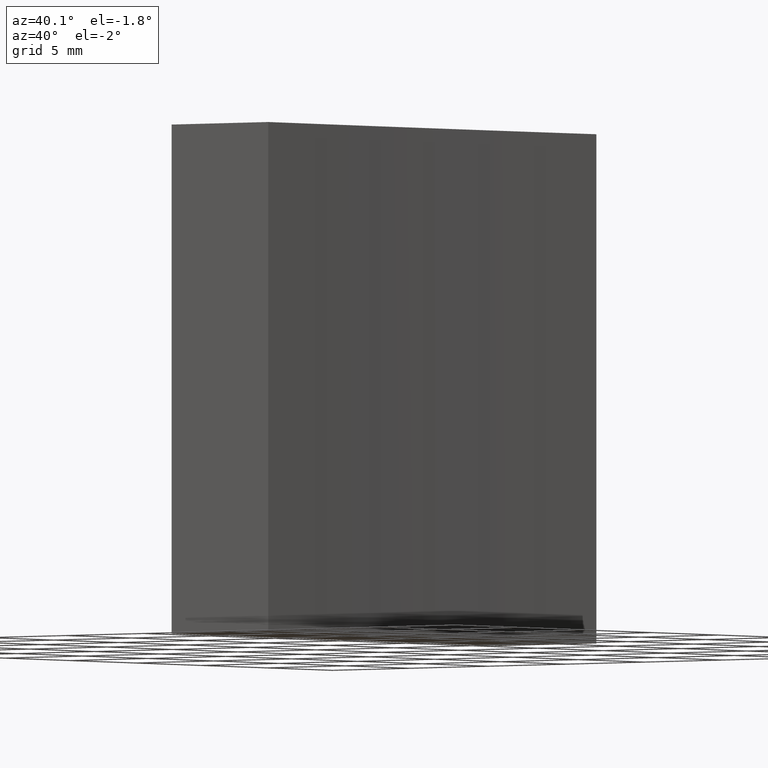
[diagram: clean part render]
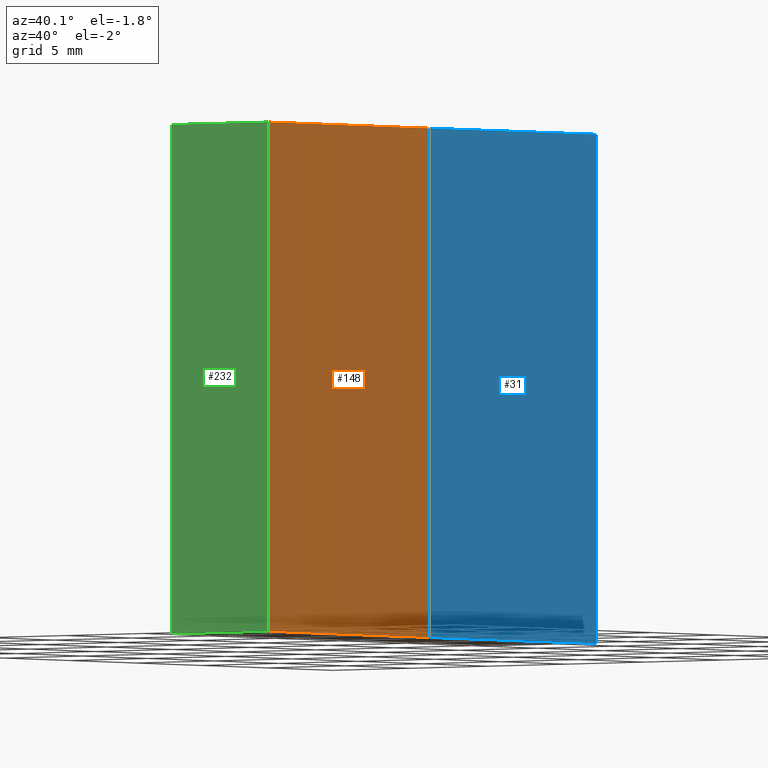
[diagram: same view with three faces highlighted in distinct colors, each labeled with its STEP entity id]
A machine part, auxiliary view with three faces highlighted in distinct colors.
Their STEP definitions:

[orange] entity #148 — the highlighted cylindrical surface (partial cylindrical patch) has radius 400 mm, axis along (-0, -0, -1).
#1 = LINE ( 'NONE', #146, #108 ) ;
#5 = DIRECTION ( 'NONE',  ( -0.0000000000000000000, -0.0000000000000000000, -1.000000000000000000 ) ) ;
#6 = EDGE_CURVE ( 'NONE', #134, #78, #185, .T. ) ;
#13 = CARTESIAN_POINT ( 'NONE',  ( 690.7071356183511200, 66.85792926776717600, 25.00000000000000000 ) ) ;
#16 = DIRECTION ( 'NONE',  ( -1.000000000000000000, 0.0000000000000000000, 0.0000000000000000000 ) ) ;
#18 = CYLINDRICAL_SURFACE ( 'NONE', #95, 400.0000000000000600 ) ;
#23 = CARTESIAN_POINT ( 'NONE',  ( 290.7071356183510000, 66.85792926776717600, 25.00000000000000000 ) ) ;
#25 = ORIENTED_EDGE ( 'NONE', *, *, #83, .T. ) ;
#35 = AXIS2_PLACEMENT_3D ( 'NONE', #102, #212, #159 ) ;
#43 = EDGE_CURVE ( 'NONE', #93, #134, #132, .T. ) ;
#46 = CARTESIAN_POINT ( 'NONE',  ( 290.9024958253641000, 54.35792926776742500, 25.00000000000000000 ) ) ;
#58 = EDGE_CURVE ( 'NONE', #93, #184, #1, .T. ) ;
#78 = VERTEX_POINT ( 'NONE', #161 ) ;
#82 = DIRECTION ( 'NONE',  ( 1.000000000000000000, 0.0000000000000000000, 0.0000000000000000000 ) ) ;
#83 = EDGE_CURVE ( 'NONE', #184, #78, #156, .T. ) ;
#84 = CARTESIAN_POINT ( 'NONE',  ( 290.7071356183510000, 66.85792926776717600, 25.00000000000000000 ) ) ;
#92 = DIRECTION ( 'NONE',  ( -0.0000000000000000000, -0.0000000000000000000, -1.000000000000000000 ) ) ;
#93 = VERTEX_POINT ( 'NONE', #46 ) ;
#95 = AXIS2_PLACEMENT_3D ( 'NONE', #13, #92, #16 ) ;
#102 = CARTESIAN_POINT ( 'NONE',  ( 690.7071356183511200, 66.85792926776717600, 0.0000000000000000000 ) ) ;
#108 = VECTOR ( 'NONE', #195, 1000.000000000000000 ) ;
#113 = ORIENTED_EDGE ( 'NONE', *, *, #43, .F. ) ;
#118 = DIRECTION ( 'NONE',  ( -0.0000000000000000000, -0.0000000000000000000, -1.000000000000000000 ) ) ;
#132 = CIRCLE ( 'NONE', #164, 400.0000000000000000 ) ;
#134 = VERTEX_POINT ( 'NONE', #84 ) ;
#135 = VECTOR ( 'NONE', #5, 1000.000000000000000 ) ;
#146 = CARTESIAN_POINT ( 'NONE',  ( 290.9024958253641000, 54.35792926776742500, 25.00000000000000000 ) ) ;
#148 = ADVANCED_FACE ( 'NONE', ( #166 ), #18, .F. ) ;
#156 = CIRCLE ( 'NONE', #35, 400.0000000000000000 ) ;
#159 = DIRECTION ( 'NONE',  ( 1.000000000000000000, 0.0000000000000000000, 0.0000000000000000000 ) ) ;
#161 = CARTESIAN_POINT ( 'NONE',  ( 290.7071356183510000, 66.85792926776717600, 0.0000000000000000000 ) ) ;
#164 = AXIS2_PLACEMENT_3D ( 'NONE', #191, #118, #82 ) ;
#166 = FACE_OUTER_BOUND ( 'NONE', #201, .T. ) ;
#177 = CARTESIAN_POINT ( 'NONE',  ( 290.9024958253641000, 54.35792926776742500, 0.0000000000000000000 ) ) ;
#184 = VERTEX_POINT ( 'NONE', #177 ) ;
#185 = LINE ( 'NONE', #23, #135 ) ;
#191 = CARTESIAN_POINT ( 'NONE',  ( 690.7071356183511200, 66.85792926776717600, 25.00000000000000000 ) ) ;
#195 = DIRECTION ( 'NONE',  ( -0.0000000000000000000, -0.0000000000000000000, -1.000000000000000000 ) ) ;
#201 = EDGE_LOOP ( 'NONE', ( #217, #113, #219, #25 ) ) ;
#212 = DIRECTION ( 'NONE',  ( -0.0000000000000000000, -0.0000000000000000000, -1.000000000000000000 ) ) ;
#217 = ORIENTED_EDGE ( 'NONE', *, *, #6, .F. ) ;
#219 = ORIENTED_EDGE ( 'NONE', *, *, #58, .T. ) ;

[blue] entity #31 — the highlighted cylindrical surface (partial cylindrical patch) has radius 400 mm, axis along (-0, -0, -1).
#3 = ORIENTED_EDGE ( 'NONE', *, *, #42, .T. ) ;
#5 = DIRECTION ( 'NONE',  ( -0.0000000000000000000, -0.0000000000000000000, -1.000000000000000000 ) ) ;
#6 = EDGE_CURVE ( 'NONE', #134, #78, #185, .T. ) ;
#8 = DIRECTION ( 'NONE',  ( -0.0000000000000000000, -0.0000000000000000000, -1.000000000000000000 ) ) ;
#9 = CARTESIAN_POINT ( 'NONE',  ( 690.7071356183511200, 66.85792926776717600, 25.00000000000000000 ) ) ;
#21 = DIRECTION ( 'NONE',  ( -0.0000000000000000000, -0.0000000000000000000, -1.000000000000000000 ) ) ;
#23 = CARTESIAN_POINT ( 'NONE',  ( 290.7071356183510000, 66.85792926776717600, 25.00000000000000000 ) ) ;
#29 = DIRECTION ( 'NONE',  ( -0.0000000000000000000, -0.0000000000000000000, -1.000000000000000000 ) ) ;
#31 = ADVANCED_FACE ( 'NONE', ( #73 ), #80, .F. ) ;
#42 = EDGE_CURVE ( 'NONE', #78, #209, #90, .T. ) ;
#55 = VECTOR ( 'NONE', #8, 1000.000000000000000 ) ;
#60 = EDGE_CURVE ( 'NONE', #134, #130, #131, .T. ) ;
#66 = CARTESIAN_POINT ( 'NONE',  ( 690.7071356183511200, 66.85792926776717600, 0.0000000000000000000 ) ) ;
#68 = CARTESIAN_POINT ( 'NONE',  ( 290.9024958253641000, 79.35792926776707600, 25.00000000000000000 ) ) ;
#72 = EDGE_LOOP ( 'NONE', ( #174, #103, #3, #239 ) ) ;
#73 = FACE_OUTER_BOUND ( 'NONE', #72, .T. ) ;
#78 = VERTEX_POINT ( 'NONE', #161 ) ;
#80 = CYLINDRICAL_SURFACE ( 'NONE', #190, 400.0000000000000600 ) ;
#84 = CARTESIAN_POINT ( 'NONE',  ( 290.7071356183510000, 66.85792926776717600, 25.00000000000000000 ) ) ;
#90 = CIRCLE ( 'NONE', #226, 400.0000000000000000 ) ;
#103 = ORIENTED_EDGE ( 'NONE', *, *, #6, .T. ) ;
#110 = CARTESIAN_POINT ( 'NONE',  ( 290.9024958253641000, 79.35792926776707600, 0.0000000000000000000 ) ) ;
#115 = CARTESIAN_POINT ( 'NONE',  ( 290.9024958253641000, 79.35792926776707600, 25.00000000000000000 ) ) ;
#117 = AXIS2_PLACEMENT_3D ( 'NONE', #9, #196, #141 ) ;
#128 = EDGE_CURVE ( 'NONE', #130, #209, #235, .T. ) ;
#130 = VERTEX_POINT ( 'NONE', #115 ) ;
#131 = CIRCLE ( 'NONE', #117, 400.0000000000000000 ) ;
#134 = VERTEX_POINT ( 'NONE', #84 ) ;
#135 = VECTOR ( 'NONE', #5, 1000.000000000000000 ) ;
#137 = CARTESIAN_POINT ( 'NONE',  ( 690.7071356183511200, 66.85792926776717600, 25.00000000000000000 ) ) ;
#141 = DIRECTION ( 'NONE',  ( 1.000000000000000000, 0.0000000000000000000, 0.0000000000000000000 ) ) ;
#142 = DIRECTION ( 'NONE',  ( 1.000000000000000000, 0.0000000000000000000, 0.0000000000000000000 ) ) ;
#154 = DIRECTION ( 'NONE',  ( -1.000000000000000000, 0.0000000000000000000, 0.0000000000000000000 ) ) ;
#161 = CARTESIAN_POINT ( 'NONE',  ( 290.7071356183510000, 66.85792926776717600, 0.0000000000000000000 ) ) ;
#174 = ORIENTED_EDGE ( 'NONE', *, *, #60, .F. ) ;
#185 = LINE ( 'NONE', #23, #135 ) ;
#190 = AXIS2_PLACEMENT_3D ( 'NONE', #137, #21, #154 ) ;
#196 = DIRECTION ( 'NONE',  ( -0.0000000000000000000, -0.0000000000000000000, -1.000000000000000000 ) ) ;
#209 = VERTEX_POINT ( 'NONE', #110 ) ;
#226 = AXIS2_PLACEMENT_3D ( 'NONE', #66, #29, #142 ) ;
#235 = LINE ( 'NONE', #68, #55 ) ;
#239 = ORIENTED_EDGE ( 'NONE', *, *, #128, .F. ) ;

[green] entity #232 — the highlighted planar face has unit normal (-0, 1, 0).
#1 = LINE ( 'NONE', #146, #108 ) ;
#10 = LINE ( 'NONE', #202, #200 ) ;
#14 = ORIENTED_EDGE ( 'NONE', *, *, #231, .T. ) ;
#17 = CARTESIAN_POINT ( 'NONE',  ( 290.9024958253641000, 54.35792926776729000, 25.00000000000000000 ) ) ;
#20 = LINE ( 'NONE', #149, #22 ) ;
#22 = VECTOR ( 'NONE', #162, 1000.000000000000000 ) ;
#46 = CARTESIAN_POINT ( 'NONE',  ( 290.9024958253641000, 54.35792926776742500, 25.00000000000000000 ) ) ;
#47 = ORIENTED_EDGE ( 'NONE', *, *, #205, .F. ) ;
#50 = CARTESIAN_POINT ( 'NONE',  ( 290.9024958253641000, 54.35792926776729000, 0.0000000000000000000 ) ) ;
#52 = CARTESIAN_POINT ( 'NONE',  ( 284.7071356312820900, 54.35792926776707600, 0.0000000000000000000 ) ) ;
#58 = EDGE_CURVE ( 'NONE', #93, #184, #1, .T. ) ;
#69 = EDGE_CURVE ( 'NONE', #167, #184, #203, .T. ) ;
#76 = FACE_OUTER_BOUND ( 'NONE', #168, .T. ) ;
#81 = AXIS2_PLACEMENT_3D ( 'NONE', #17, #237, #127 ) ;
#88 = PLANE ( 'NONE',  #81 ) ;
#89 = VERTEX_POINT ( 'NONE', #229 ) ;
#93 = VERTEX_POINT ( 'NONE', #46 ) ;
#108 = VECTOR ( 'NONE', #195, 1000.000000000000000 ) ;
#127 = DIRECTION ( 'NONE',  ( -1.000000000000000000, -3.360043816597844900E-014, 0.0000000000000000000 ) ) ;
#145 = DIRECTION ( 'NONE',  ( 1.000000000000000000, 3.360043816597844900E-014, -0.0000000000000000000 ) ) ;
#146 = CARTESIAN_POINT ( 'NONE',  ( 290.9024958253641000, 54.35792926776742500, 25.00000000000000000 ) ) ;
#149 = CARTESIAN_POINT ( 'NONE',  ( 284.7071356312820900, 54.35792926776707600, 25.00000000000000000 ) ) ;
#153 = ORIENTED_EDGE ( 'NONE', *, *, #58, .F. ) ;
#162 = DIRECTION ( 'NONE',  ( -0.0000000000000000000, -0.0000000000000000000, -1.000000000000000000 ) ) ;
#167 = VERTEX_POINT ( 'NONE', #52 ) ;
#168 = EDGE_LOOP ( 'NONE', ( #170, #153, #47, #14 ) ) ;
#170 = ORIENTED_EDGE ( 'NONE', *, *, #69, .T. ) ;
#177 = CARTESIAN_POINT ( 'NONE',  ( 290.9024958253641000, 54.35792926776742500, 0.0000000000000000000 ) ) ;
#184 = VERTEX_POINT ( 'NONE', #177 ) ;
#195 = DIRECTION ( 'NONE',  ( -0.0000000000000000000, -0.0000000000000000000, -1.000000000000000000 ) ) ;
#197 = DIRECTION ( 'NONE',  ( 1.000000000000000000, 3.360043816597844900E-014, -0.0000000000000000000 ) ) ;
#200 = VECTOR ( 'NONE', #197, 1000.000000000000000 ) ;
#202 = CARTESIAN_POINT ( 'NONE',  ( 290.9024958253641000, 54.35792926776729000, 25.00000000000000000 ) ) ;
#203 = LINE ( 'NONE', #50, #225 ) ;
#205 = EDGE_CURVE ( 'NONE', #89, #93, #10, .T. ) ;
#225 = VECTOR ( 'NONE', #145, 1000.000000000000000 ) ;
#229 = CARTESIAN_POINT ( 'NONE',  ( 284.7071356312820900, 54.35792926776707600, 25.00000000000000000 ) ) ;
#231 = EDGE_CURVE ( 'NONE', #89, #167, #20, .T. ) ;
#232 = ADVANCED_FACE ( 'NONE', ( #76 ), #88, .F. ) ;
#237 = DIRECTION ( 'NONE',  ( -3.360043816597844900E-014, 1.000000000000000000, 0.0000000000000000000 ) ) ;